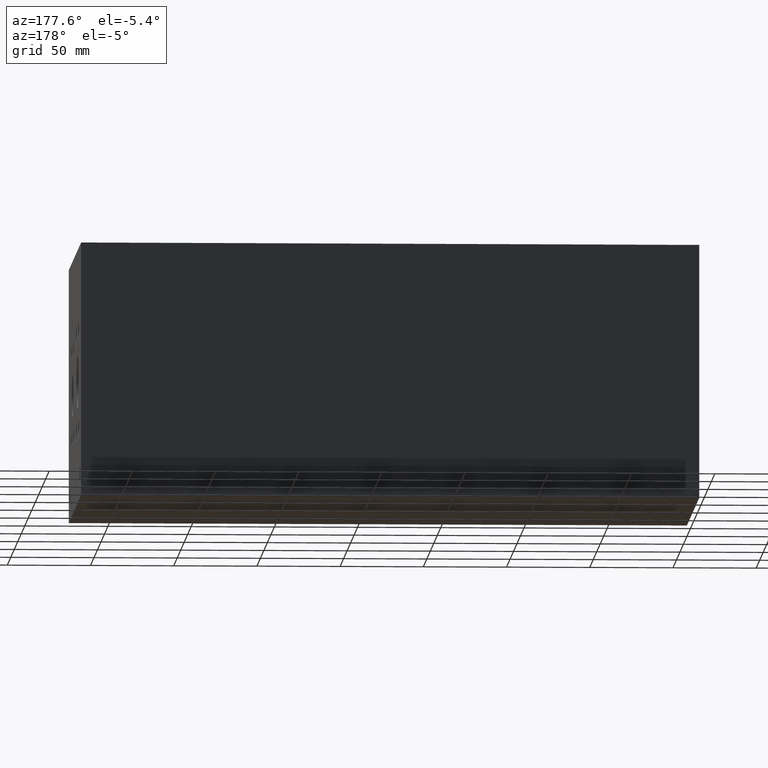
[diagram: clean part render]
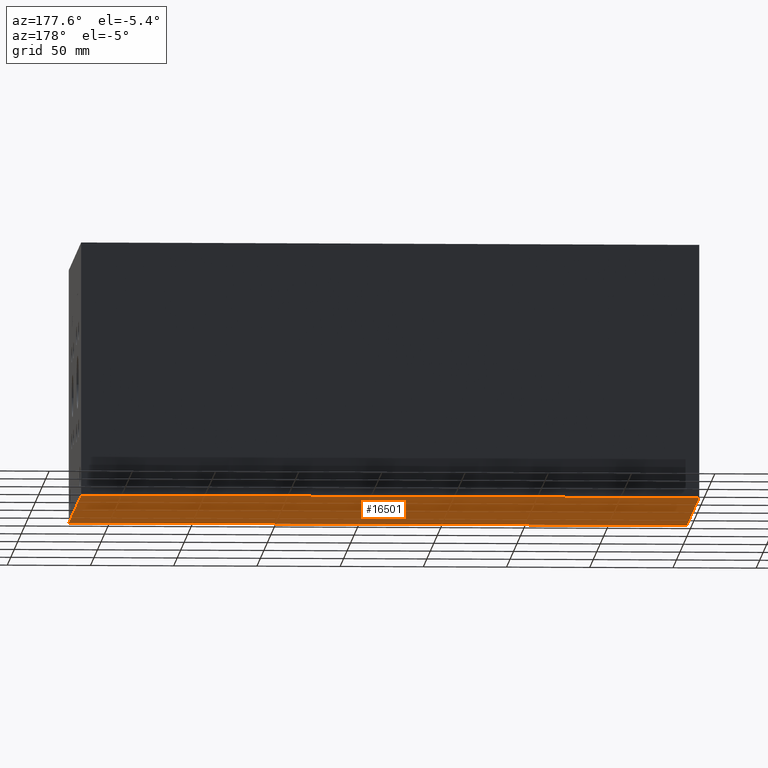
[diagram: same view with one face highlighted and labeled with its STEP entity id]
A machine part, auxiliary view. The second image highlights one B-rep face of the part: STEP entity #16501.
In plain terms, the highlighted planar face has unit normal (0, 0, 1).
Its self-contained STEP definition (entity closure, byte-faithful):
#1540=PLANE('',#17829);
#2397=FACE_OUTER_BOUND('',#3467,.T.);
#3467=EDGE_LOOP('',(#15002,#15003,#15004,#15005));
#3500=LINE('',#22066,#4901);
#3560=LINE('',#22373,#4961);
#3896=LINE('',#24106,#5297);
#4867=LINE('',#28428,#6268);
#4901=VECTOR('',#17884,10.);
#4961=VECTOR('',#18030,10.);
#5297=VECTOR('',#18620,10.);
#6268=VECTOR('',#21851,10.);
#6580=VERTEX_POINT('',#22064);
#6581=VERTEX_POINT('',#22065);
#6656=VERTEX_POINT('',#22371);
#6657=VERTEX_POINT('',#22372);
#8229=EDGE_CURVE('',#6580,#6581,#3500,.T.);
#8329=EDGE_CURVE('',#6656,#6657,#3560,.T.);
#8807=EDGE_CURVE('',#6657,#6580,#3896,.T.);
#10454=EDGE_CURVE('',#6581,#6656,#4867,.T.);
#15002=ORIENTED_EDGE('',*,*,#8807,.F.);
#15003=ORIENTED_EDGE('',*,*,#8329,.F.);
#15004=ORIENTED_EDGE('',*,*,#10454,.F.);
#15005=ORIENTED_EDGE('',*,*,#8229,.F.);
#16501=ADVANCED_FACE('',(#2397),#1540,.F.);
#17829=AXIS2_PLACEMENT_3D('',#28433,#21859,#21860);
#17884=DIRECTION('',(0.,1.,0.));
#18030=DIRECTION('',(0.,-1.,0.));
#18620=DIRECTION('',(1.,0.,0.));
#21851=DIRECTION('',(-1.,0.,0.));
#21859=DIRECTION('center_axis',(0.,0.,1.));
#21860=DIRECTION('ref_axis',(1.,0.,0.));
#22064=CARTESIAN_POINT('',(371.475,0.,0.));
#22065=CARTESIAN_POINT('',(371.475,177.8,0.));
#22066=CARTESIAN_POINT('',(371.475,0.,0.));
#22371=CARTESIAN_POINT('',(0.,177.8,0.));
#22372=CARTESIAN_POINT('',(0.,0.,0.));
#22373=CARTESIAN_POINT('',(0.,177.8,0.));
#24106=CARTESIAN_POINT('',(0.,0.,0.));
#28428=CARTESIAN_POINT('',(371.475,177.8,0.));
#28433=CARTESIAN_POINT('Origin',(185.7375,88.9,0.));